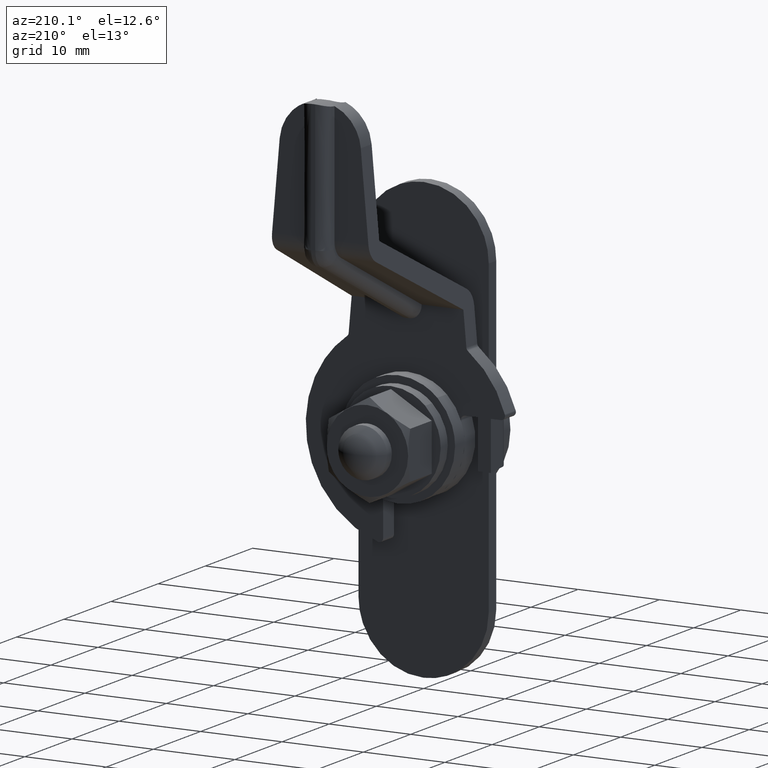
[diagram: clean part render]
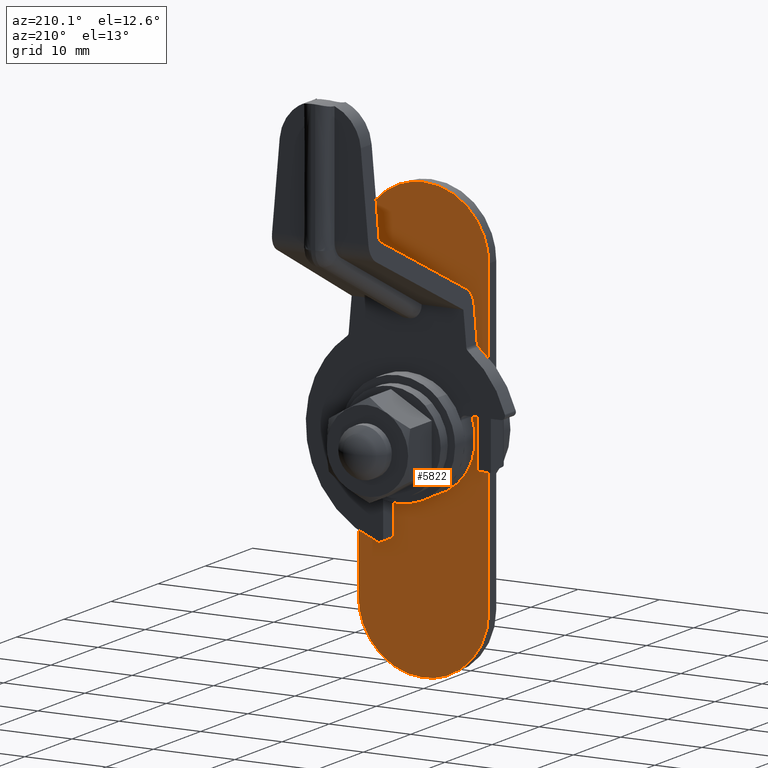
[diagram: same view with one face highlighted and labeled with its STEP entity id]
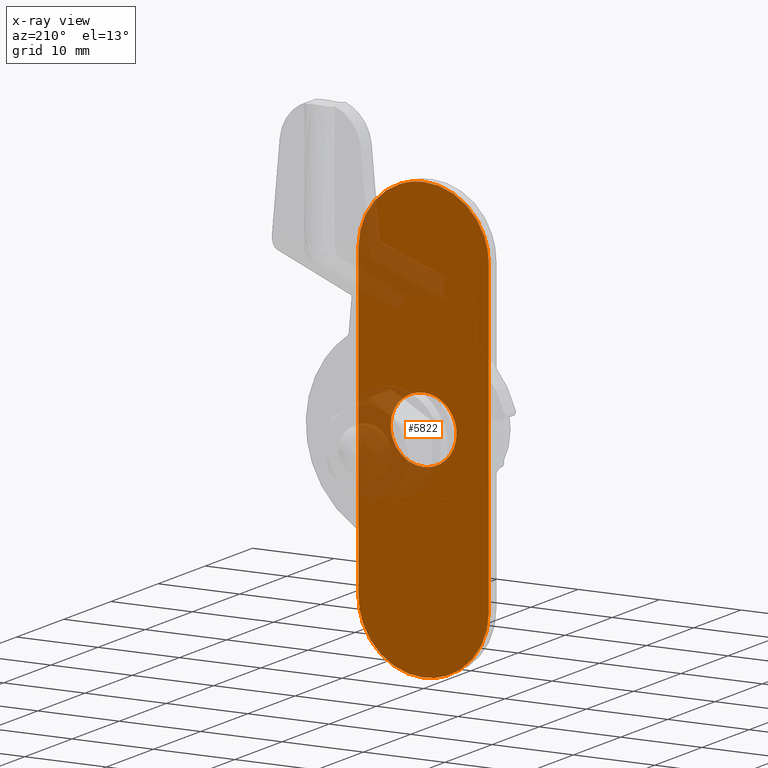
[diagram: x-ray of the same camera — body ghosted, the highlighted face saturated]
A machine part, auxiliary view. The second image highlights one B-rep face of the part: STEP entity #5822.
The next image is the same camera in x-ray: the body ghosted, the highlighted face saturated — about 17% of this face is hidden behind the body in this view.
In plain terms, the highlighted face is a freeform B-spline surface patch.
Its self-contained STEP definition (entity closure, byte-faithful):
#5304=CARTESIAN_POINT('',(2.787835963978496,-3.816392E-017,-2.937766046755747));
#5305=VERTEX_POINT('',#5304);
#5311=CARTESIAN_POINT('',(0.0,0.0,-4.050000000000000));
#5312=VERTEX_POINT('',#5311);
#5313=CARTESIAN_POINT('',(0.0,0.0,-4.050000000000000));
#5314=CARTESIAN_POINT('',(0.272253420213466,-3.726997E-018,-4.050035358957848));
#5315=CARTESIAN_POINT('',(0.800723687741156,-1.096146E-017,-3.996515164486063));
#5316=CARTESIAN_POINT('',(1.523807770586072,-2.086008E-017,-3.775561085658335));
#5317=CARTESIAN_POINT('',(2.195650040537961,-3.005722E-017,-3.430455646749126));
#5318=CARTESIAN_POINT('',(2.590373199871209,-3.546076E-017,-3.125195706890925));
#5319=CARTESIAN_POINT('',(2.787835963978496,-3.816392E-017,-2.937766046755747));
#5320=B_SPLINE_CURVE_WITH_KNOTS('',3,(#5313,#5314,#5315,#5316,#5317,#5318,#5319),.UNSPECIFIED.,.F.,.U.,(4,1,1,1,4),(0.000000018503934,0.816758171812884,1.585458975373519,2.258093682626226,3.074851835925709),.UNSPECIFIED.);
#5321=EDGE_CURVE('',#5312,#5305,#5320,.T.);
#5323=CARTESIAN_POINT('',(-4.049999999999949,0.0,-0.000000639136269));
#5324=VERTEX_POINT('',#5323);
#5325=CARTESIAN_POINT('',(-4.049999999999949,0.0,-0.000000639136269));
#5326=CARTESIAN_POINT('',(-4.050021376331706,0.0,-0.265066795534037));
#5327=CARTESIAN_POINT('',(-3.989669680714064,0.0,-0.878058232517590));
#5328=CARTESIAN_POINT('',(-3.706834721637081,0.0,-1.717005726409069));
#5329=CARTESIAN_POINT('',(-3.191543116696939,0.0,-2.553209971952235));
#5330=CARTESIAN_POINT('',(-2.588713271870925,0.0,-3.156131041289702));
#5331=CARTESIAN_POINT('',(-1.931244431532019,0.0,-3.577970597366948));
#5332=CARTESIAN_POINT('',(-1.354159005704651,0.0,-3.833799018994144));
#5333=CARTESIAN_POINT('',(-0.712369413034660,0.0,-4.007168678469267));
#5334=CARTESIAN_POINT('',(-0.248505279746899,0.0,-4.050027765797061));
#5335=CARTESIAN_POINT('',(0.0,0.0,-4.050000000000000));
#5336=B_SPLINE_CURVE_WITH_KNOTS('',3,(#5325,#5326,#5327,#5328,#5329,#5330,#5331,#5332,#5333,#5334,#5335),.UNSPECIFIED.,.F.,.U.,(4,1,1,1,1,1,1,1,4),(0.000000071200660,0.795207521116857,1.838952461712017,2.634173546756636,3.727595044182834,4.373706819607634,4.970130585225387,5.616251550114034,6.361764680417384),.UNSPECIFIED.);
#5337=EDGE_CURVE('',#5324,#5312,#5336,.T.);
#5339=CARTESIAN_POINT('',(0.0,0.0,4.050000000000000));
#5340=VERTEX_POINT('',#5339);
#5341=CARTESIAN_POINT('',(0.0,0.0,4.050000000000000));
#5342=CARTESIAN_POINT('',(-0.314775949877943,0.0,4.050065615718139));
#5343=CARTESIAN_POINT('',(-0.811751106450958,0.0,3.991755221050467));
#5344=CARTESIAN_POINT('',(-1.477863989806134,0.0,3.785195708052762));
#5345=CARTESIAN_POINT('',(-2.063546391452511,0.0,3.508210826077874));
#5346=CARTESIAN_POINT('',(-2.730501069191906,0.0,3.038574155759377));
#5347=CARTESIAN_POINT('',(-3.287626349500232,0.0,2.416297529655298));
#5348=CARTESIAN_POINT('',(-3.660123961288653,0.0,1.767764134046351));
#5349=CARTESIAN_POINT('',(-3.957709548484447,0.0,1.010485467248601));
#5350=CARTESIAN_POINT('',(-4.050195774259096,0.0,0.414203425841813));
#5351=CARTESIAN_POINT('',(-4.049999999999949,0.0,-0.000000639136269));
#5352=B_SPLINE_CURVE_WITH_KNOTS('',3,(#5341,#5342,#5343,#5344,#5345,#5346,#5347,#5348,#5349,#5350,#5351),.UNSPECIFIED.,.F.,.U.,(4,1,1,1,1,1,1,1,4),(0.000000070980157,0.944313055946179,1.491037379591461,2.087454919917114,2.882697447464835,3.926395951291294,4.572516989498781,5.119233933469779,6.361765400877429),.UNSPECIFIED.);
#5353=EDGE_CURVE('',#5340,#5324,#5352,.T.);
#5355=CARTESIAN_POINT('',(3.092400484407597,-3.904214E-017,2.615255345147433));
#5356=VERTEX_POINT('',#5355);
#5357=CARTESIAN_POINT('',(3.092400484407597,-3.904214E-017,2.615255345147433));
#5358=CARTESIAN_POINT('',(2.879445038155224,-3.635354E-017,2.867189813343971));
#5359=CARTESIAN_POINT('',(2.405048314482408,-3.036419E-017,3.305983704955594));
#5360=CARTESIAN_POINT('',(1.664036896416400,-2.100878E-017,3.719585392466256));
#5361=CARTESIAN_POINT('',(0.861300591051766,-1.087408E-017,3.984680801022134));
#5362=CARTESIAN_POINT('',(0.329882615231386,-4.164830E-018,4.050087803102453));
#5363=CARTESIAN_POINT('',(0.0,0.0,4.050000000000000));
#5364=B_SPLINE_CURVE_WITH_KNOTS('',3,(#5357,#5358,#5359,#5360,#5361,#5362,#5363),.UNSPECIFIED.,.F.,.U.,(4,1,1,1,4),(0.000000023080694,0.989627527615385,1.924262439606654,2.529046167628894,3.518673672163740),.UNSPECIFIED.);
#5365=EDGE_CURVE('',#5356,#5340,#5364,.T.);
#5401=CARTESIAN_POINT('',(4.049999999999949,0.0,0.000000639136246));
#5402=VERTEX_POINT('',#5401);
#5403=CARTESIAN_POINT('',(4.049999999999949,0.0,0.000000639136246));
#5404=CARTESIAN_POINT('',(4.050063969419474,-4.642356E-018,0.310970910309905));
#5405=CARTESIAN_POINT('',(3.996860536536822,-1.149471E-017,0.769978656281272));
#5406=CARTESIAN_POINT('',(3.804925826708121,-2.126739E-017,1.424606216126053));
#5407=CARTESIAN_POINT('',(3.543082846854648,-2.996727E-017,2.007371249886251));
#5408=CARTESIAN_POINT('',(3.264543909703646,-3.600421E-017,2.411758399912755));
#5409=CARTESIAN_POINT('',(3.092400484407597,-3.904214E-017,2.615255345147433));
#5410=B_SPLINE_CURVE_WITH_KNOTS('',3,(#5403,#5404,#5405,#5406,#5407,#5408,#5409),.UNSPECIFIED.,.F.,.U.,(4,1,1,1,4),(0.000000014311790,0.932892756859217,1.377133062226096,2.043471713793368,2.843092203279378),.UNSPECIFIED.);
#5411=EDGE_CURVE('',#5402,#5356,#5410,.T.);
#5413=CARTESIAN_POINT('',(2.787835963978496,-3.816392E-017,-2.937766046755747));
#5414=CARTESIAN_POINT('',(3.086019808483868,-3.449149E-017,-2.655071246098169));
#5415=CARTESIAN_POINT('',(3.510109858648804,-2.737665E-017,-2.107388079555282));
#5416=CARTESIAN_POINT('',(3.944867352988241,-1.423177E-017,-1.095527099665541));
#5417=CARTESIAN_POINT('',(4.050193908690709,-5.337710E-018,-0.410883406379679));
#5418=CARTESIAN_POINT('',(4.049999999999949,0.0,0.000000639136246));
#5419=B_SPLINE_CURVE_WITH_KNOTS('',3,(#5413,#5414,#5415,#5416,#5417,#5418),.UNSPECIFIED.,.F.,.U.,(4,1,1,4),(0.000000019326600,1.232593155648626,2.054320715207185,3.286913851537876),.UNSPECIFIED.);
#5420=EDGE_CURVE('',#5305,#5402,#5419,.T.);
#5464=CARTESIAN_POINT('',(-8.0,0.000026249934202,3.0));
#5465=VERTEX_POINT('',#5464);
#5507=CARTESIAN_POINT('',(-8.0,0.000026249934202,-3.0));
#5508=VERTEX_POINT('',#5507);
#5571=CARTESIAN_POINT('',(-8.0,0.000026249934202,3.0));
#5572=CARTESIAN_POINT('',(-8.0,0.000026249934202,-3.0));
#5573=QUASI_UNIFORM_CURVE('',1,(#5571,#5572),.UNSPECIFIED.,.F.,.U.);
#5574=EDGE_CURVE('',#5465,#5508,#5573,.T.);
#5717=CARTESIAN_POINT('',(-8.799199968988896,-1.517883E-015,29.697299895337459));
#5718=CARTESIAN_POINT('',(8.799200398142338,-1.517883E-015,29.697299895337459));
#5719=CARTESIAN_POINT('',(-8.799199968988896,-1.517883E-015,-29.697301343730320));
#5720=CARTESIAN_POINT('',(8.799200398142338,-1.517883E-015,-29.697301343730320));
#5721=B_SPLINE_SURFACE_WITH_KNOTS('',1,1,((#5717,#5719),(#5718,#5720)),.UNSPECIFIED.,.F.,.F.,.U.,(2,2),(2,2),(0.0,17.598400367131230),(0.0,59.394601239067782),.UNSPECIFIED.);
#5722=CARTESIAN_POINT('',(8.0,0.0,19.0));
#5723=VERTEX_POINT('',#5722);
#5724=CARTESIAN_POINT('',(8.0,0.0,-19.0));
#5725=VERTEX_POINT('',#5724);
#5726=CARTESIAN_POINT('',(8.0,0.0,19.0));
#5727=CARTESIAN_POINT('',(8.0,0.0,-19.0));
#5728=QUASI_UNIFORM_CURVE('',1,(#5726,#5727),.UNSPECIFIED.,.F.,.U.);
#5729=EDGE_CURVE('',#5723,#5725,#5728,.T.);
#5730=ORIENTED_EDGE('',*,*,#5729,.T.);
#5731=CARTESIAN_POINT('',(0.000000934780659,0.0,-26.999999999999940));
#5732=VERTEX_POINT('',#5731);
#5733=CARTESIAN_POINT('',(0.000000934780659,0.0,-26.999999999999940));
#5734=CARTESIAN_POINT('',(0.589061590021637,0.0,-27.000115240121168));
#5735=CARTESIAN_POINT('',(1.374407368442906,0.0,-26.912854779348390));
#5736=CARTESIAN_POINT('',(2.641053385302438,0.0,-26.579022222547142));
#5737=CARTESIAN_POINT('',(3.643581491945017,0.0,-26.163769578497849));
#5738=CARTESIAN_POINT('',(4.672821557567827,0.0,-25.520739976080769));
#5739=CARTESIAN_POINT('',(5.509192116690300,0.0,-24.834371038278650));
#5740=CARTESIAN_POINT('',(6.179168163013555,0.0,-24.113137799911719));
#5741=CARTESIAN_POINT('',(6.870168158971956,0.0,-23.157208866603650));
#5742=CARTESIAN_POINT('',(7.400201889640519,0.0,-22.135633798581971));
#5743=CARTESIAN_POINT('',(7.874743185775845,0.0,-20.668884423804410));
#5744=CARTESIAN_POINT('',(8.000189089332222,0.0,-19.654521212353309));
#5745=CARTESIAN_POINT('',(8.0,0.0,-19.0));
#5746=B_SPLINE_CURVE_WITH_KNOTS('',3,(#5733,#5734,#5735,#5736,#5737,#5738,#5739,#5740,#5741,#5742,#5743,#5744,#5745),.UNSPECIFIED.,.F.,.U.,(4,1,1,1,1,1,1,1,1,1,4),(0.000000014663456,1.767155173328098,2.356207493751828,3.927020058565681,5.006956287543400,5.988705942974522,7.166792417576429,7.952198692843357,9.523012135107177,10.602946555239740,12.566448936139830),.UNSPECIFIED.);
#5747=EDGE_CURVE('',#5732,#5725,#5746,.T.);
#5748=ORIENTED_EDGE('',*,*,#5747,.F.);
#5749=CARTESIAN_POINT('',(-8.0,0.0,-19.0));
#5750=VERTEX_POINT('',#5749);
#5751=CARTESIAN_POINT('',(-8.0,0.0,-19.0));
#5752=CARTESIAN_POINT('',(-8.000026249679104,0.0,-19.425424064163479));
#5753=CARTESIAN_POINT('',(-7.926754608725390,0.0,-20.341717789801681));
#5754=CARTESIAN_POINT('',(-7.599563681434118,0.0,-21.614893739545629));
#5755=CARTESIAN_POINT('',(-7.041027209250058,0.0,-22.874836256514580));
#5756=CARTESIAN_POINT('',(-6.299373986109770,0.0,-23.999760653022619));
#5757=CARTESIAN_POINT('',(-5.280176814861584,0.0,-25.070245980130711));
#5758=CARTESIAN_POINT('',(-4.107577280976140,0.0,-25.917800481594021));
#5759=CARTESIAN_POINT('',(-2.771410588819811,0.0,-26.549766976678359));
#5760=CARTESIAN_POINT('',(-1.407157984397081,0.0,-26.918264480822330));
#5761=CARTESIAN_POINT('',(-0.458147522299720,0.0,-27.000037987288991));
#5762=CARTESIAN_POINT('',(0.000000934780659,0.0,-26.999999999999940));
#5763=B_SPLINE_CURVE_WITH_KNOTS('',3,(#5751,#5752,#5753,#5754,#5755,#5756,#5757,#5758,#5759,#5760,#5761,#5762),.UNSPECIFIED.,.F.,.U.,(4,1,1,1,1,1,1,1,1,4),(0.000000014343312,1.276277357597918,2.748909727281740,3.927020387693881,5.399658970374970,6.774093008375523,8.344903613762661,9.719364089263713,11.192003565949911,12.566449989862109),.UNSPECIFIED.);
#5764=EDGE_CURVE('',#5750,#5732,#5763,.T.);
#5765=ORIENTED_EDGE('',*,*,#5764,.F.);
#5766=CARTESIAN_POINT('',(-8.0,0.0,-19.0));
#5767=CARTESIAN_POINT('',(-8.0,0.000026249934202,-3.0));
#5768=QUASI_UNIFORM_CURVE('',1,(#5766,#5767),.UNSPECIFIED.,.F.,.U.);
#5769=EDGE_CURVE('',#5750,#5508,#5768,.T.);
#5770=ORIENTED_EDGE('',*,*,#5769,.T.);
#5771=ORIENTED_EDGE('',*,*,#5574,.F.);
#5772=CARTESIAN_POINT('',(-8.0,0.0,19.0));
#5773=VERTEX_POINT('',#5772);
#5774=CARTESIAN_POINT('',(-8.0,0.000026249934202,3.0));
#5775=CARTESIAN_POINT('',(-8.0,0.0,19.0));
#5776=QUASI_UNIFORM_CURVE('',1,(#5774,#5775),.UNSPECIFIED.,.F.,.U.);
#5777=EDGE_CURVE('',#5465,#5773,#5776,.T.);
#5778=ORIENTED_EDGE('',*,*,#5777,.T.);
#5779=CARTESIAN_POINT('',(-0.000000934780659,0.0,26.999999999999940));
#5780=VERTEX_POINT('',#5779);
#5781=CARTESIAN_POINT('',(-0.000000934780659,0.0,26.999999999999940));
#5782=CARTESIAN_POINT('',(-0.589061590021637,0.0,27.000115240121168));
#5783=CARTESIAN_POINT('',(-1.374407368442906,0.0,26.912854779348390));
#5784=CARTESIAN_POINT('',(-2.641053385302438,0.0,26.579022222547142));
#5785=CARTESIAN_POINT('',(-3.643581491945017,0.0,26.163769578497849));
#5786=CARTESIAN_POINT('',(-4.672821557567827,0.0,25.520739976080769));
#5787=CARTESIAN_POINT('',(-5.509192116690300,0.0,24.834371038278650));
#5788=CARTESIAN_POINT('',(-6.179168163013555,0.0,24.113137799911719));
#5789=CARTESIAN_POINT('',(-6.870168158971956,0.0,23.157208866603650));
#5790=CARTESIAN_POINT('',(-7.400201889640519,0.0,22.135633798581971));
#5791=CARTESIAN_POINT('',(-7.874743185775845,0.0,20.668884423804410));
#5792=CARTESIAN_POINT('',(-8.000189089332222,0.0,19.654521212353309));
#5793=CARTESIAN_POINT('',(-8.0,0.0,19.0));
#5794=B_SPLINE_CURVE_WITH_KNOTS('',3,(#5781,#5782,#5783,#5784,#5785,#5786,#5787,#5788,#5789,#5790,#5791,#5792,#5793),.UNSPECIFIED.,.F.,.U.,(4,1,1,1,1,1,1,1,1,1,4),(0.000000014663456,1.767155173328098,2.356207493751828,3.927020058565681,5.006956287543400,5.988705942974522,7.166792417576429,7.952198692843357,9.523012135107177,10.602946555239740,12.566448936139830),.UNSPECIFIED.);
#5795=EDGE_CURVE('',#5780,#5773,#5794,.T.);
#5796=ORIENTED_EDGE('',*,*,#5795,.F.);
#5797=CARTESIAN_POINT('',(8.0,0.0,19.0));
#5798=CARTESIAN_POINT('',(8.000026249679104,0.0,19.425424064163479));
#5799=CARTESIAN_POINT('',(7.926754608725390,0.0,20.341717789801681));
#5800=CARTESIAN_POINT('',(7.599563681434118,0.0,21.614893739545629));
#5801=CARTESIAN_POINT('',(7.041027209250058,0.0,22.874836256514580));
#5802=CARTESIAN_POINT('',(6.299373986109770,0.0,23.999760653022619));
#5803=CARTESIAN_POINT('',(5.280176814861584,0.0,25.070245980130711));
#5804=CARTESIAN_POINT('',(4.107577280976140,0.0,25.917800481594021));
#5805=CARTESIAN_POINT('',(2.771410588819811,0.0,26.549766976678359));
#5806=CARTESIAN_POINT('',(1.407157984397081,0.0,26.918264480822330));
#5807=CARTESIAN_POINT('',(0.458147522299720,0.0,27.000037987288991));
#5808=CARTESIAN_POINT('',(-0.000000934780659,0.0,26.999999999999940));
#5809=B_SPLINE_CURVE_WITH_KNOTS('',3,(#5797,#5798,#5799,#5800,#5801,#5802,#5803,#5804,#5805,#5806,#5807,#5808),.UNSPECIFIED.,.F.,.U.,(4,1,1,1,1,1,1,1,1,4),(0.000000014343312,1.276277357597918,2.748909727281740,3.927020387693881,5.399658970374970,6.774093008375523,8.344903613762661,9.719364089263713,11.192003565949911,12.566449989862109),.UNSPECIFIED.);
#5810=EDGE_CURVE('',#5723,#5780,#5809,.T.);
#5811=ORIENTED_EDGE('',*,*,#5810,.F.);
#5812=EDGE_LOOP('',(#5730,#5748,#5765,#5770,#5771,#5778,#5796,#5811));
#5813=FACE_OUTER_BOUND('',#5812,.T.);
#5814=ORIENTED_EDGE('',*,*,#5353,.T.);
#5815=ORIENTED_EDGE('',*,*,#5337,.T.);
#5816=ORIENTED_EDGE('',*,*,#5321,.T.);
#5817=ORIENTED_EDGE('',*,*,#5420,.T.);
#5818=ORIENTED_EDGE('',*,*,#5411,.T.);
#5819=ORIENTED_EDGE('',*,*,#5365,.T.);
#5820=EDGE_LOOP('',(#5814,#5815,#5816,#5817,#5818,#5819));
#5821=FACE_BOUND('',#5820,.T.);
#5822=ADVANCED_FACE('',(#5813,#5821),#5721,.T.);